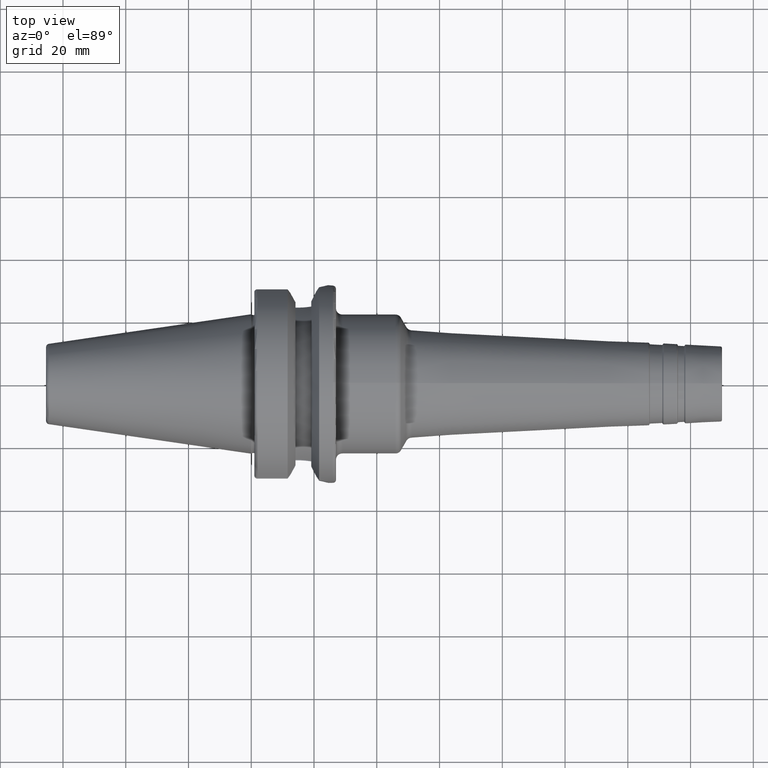
[diagram: clean part render]
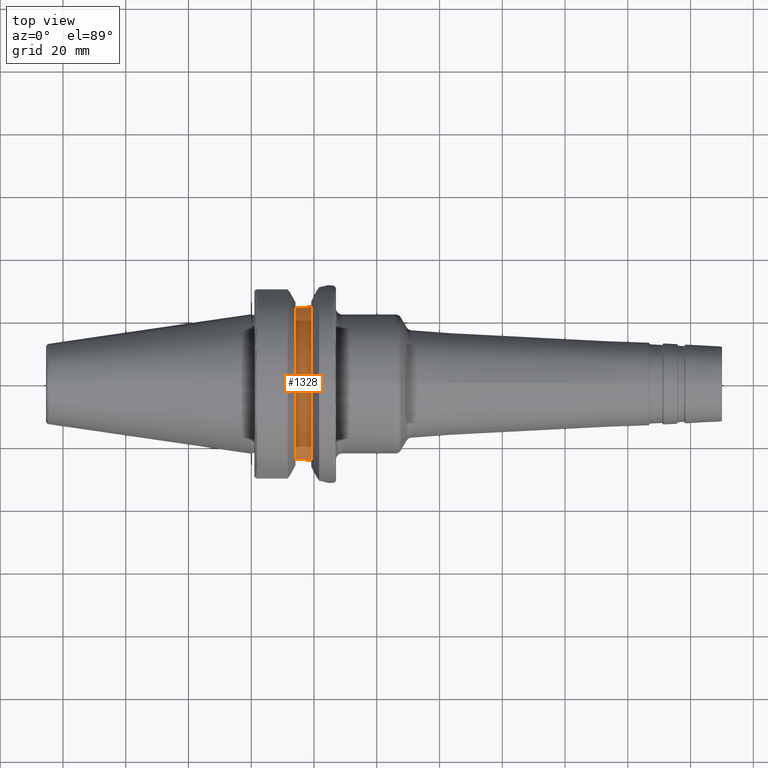
[diagram: same view with one face highlighted and labeled with its STEP entity id]
A machine part, top view. The second image highlights one B-rep face of the part: STEP entity #1328.
In plain terms, the highlighted cylindrical surface (partial cylindrical patch) has radius 25.5 mm, axis along (1, 0, 0).
Its self-contained STEP definition (entity closure, byte-faithful):
#43=B_SPLINE_CURVE_WITH_KNOTS('',3,(#2486,#2487,#2488,#2489,#2490,#2491),
 .UNSPECIFIED.,.F.,.F.,(4,2,4),(0.,0.305559393991992,0.418764848000603),
 .UNSPECIFIED.);
#46=B_SPLINE_CURVE_WITH_KNOTS('',3,(#2552,#2553,#2554,#2555,#2556,#2557),
 .UNSPECIFIED.,.F.,.F.,(4,2,4),(-0.418764848000603,-0.305559393991992,0.),
 .UNSPECIFIED.);
#62=CYLINDRICAL_SURFACE('',#1506,25.5);
#142=LINE('',#2462,#213);
#156=LINE('',#2558,#227);
#213=VECTOR('',#1826,10.);
#227=VECTOR('',#1882,10.);
#324=FACE_OUTER_BOUND('',#411,.T.);
#411=EDGE_LOOP('',(#1144,#1145,#1146,#1147,#1148,#1149));
#505=CIRCLE('',#1503,25.5);
#507=CIRCLE('',#1507,25.5);
#614=VERTEX_POINT('',#2459);
#615=VERTEX_POINT('',#2461);
#621=VERTEX_POINT('',#2484);
#631=VERTEX_POINT('',#2536);
#633=VERTEX_POINT('',#2549);
#634=VERTEX_POINT('',#2551);
#783=EDGE_CURVE('',#615,#614,#142,.T.);
#792=EDGE_CURVE('',#614,#621,#43,.T.);
#810=EDGE_CURVE('',#631,#615,#505,.T.);
#814=EDGE_CURVE('',#633,#621,#507,.T.);
#815=EDGE_CURVE('',#633,#634,#46,.T.);
#816=EDGE_CURVE('',#634,#631,#156,.T.);
#1144=ORIENTED_EDGE('',*,*,#783,.T.);
#1145=ORIENTED_EDGE('',*,*,#792,.T.);
#1146=ORIENTED_EDGE('',*,*,#814,.F.);
#1147=ORIENTED_EDGE('',*,*,#815,.T.);
#1148=ORIENTED_EDGE('',*,*,#816,.T.);
#1149=ORIENTED_EDGE('',*,*,#810,.T.);
#1328=ADVANCED_FACE('',(#324),#62,.T.);
#1503=AXIS2_PLACEMENT_3D('',#2537,#1871,#1872);
#1506=AXIS2_PLACEMENT_3D('',#2548,#1878,#1879);
#1507=AXIS2_PLACEMENT_3D('',#2550,#1880,#1881);
#1826=DIRECTION('',(1.,0.,0.));
#1871=DIRECTION('center_axis',(1.,0.,0.));
#1872=DIRECTION('ref_axis',(0.,0.,-1.));
#1878=DIRECTION('center_axis',(1.,0.,0.));
#1879=DIRECTION('ref_axis',(0.,1.,0.));
#1880=DIRECTION('center_axis',(1.,0.,0.));
#1881=DIRECTION('ref_axis',(0.,0.,-1.));
#1882=DIRECTION('',(-1.,0.,0.));
#2459=CARTESIAN_POINT('',(14.95,-24.1960224003864,8.05));
#2461=CARTESIAN_POINT('',(14.1,-24.1960224003864,8.05));
#2462=CARTESIAN_POINT('',(16.6,-24.1960224003864,8.05));
#2484=CARTESIAN_POINT('',(19.1,-24.5493380766162,6.89782574439221));
#2486=CARTESIAN_POINT('Ctrl Pts',(14.95,-24.1960224003864,8.05));
#2487=CARTESIAN_POINT('Ctrl Pts',(15.9685313133066,-24.1960224003864,8.05));
#2488=CARTESIAN_POINT('Ctrl Pts',(17.0497516664971,-24.2670783971366,7.84501312719341));
#2489=CARTESIAN_POINT('Ctrl Pts',(18.4072379028184,-24.4390565244262,7.28065599998141));
#2490=CARTESIAN_POINT('Ctrl Pts',(18.7625417379862,-24.492291659194,7.10085374759973));
#2491=CARTESIAN_POINT('Ctrl Pts',(19.1,-24.5493380766162,6.89782574439221));
#2536=CARTESIAN_POINT('',(14.1,24.1960224003864,8.05));
#2537=CARTESIAN_POINT('Origin',(14.1,0.,0.));
#2548=CARTESIAN_POINT('Origin',(16.6,0.,0.));
#2549=CARTESIAN_POINT('',(19.1,24.5493380766162,6.89782574439221));
#2550=CARTESIAN_POINT('Origin',(19.1,0.,0.));
#2551=CARTESIAN_POINT('',(14.95,24.1960224003864,8.05));
#2552=CARTESIAN_POINT('Ctrl Pts',(19.1,24.5493380766162,6.89782574439221));
#2553=CARTESIAN_POINT('Ctrl Pts',(18.7625417379862,24.492291659194,7.10085374759973));
#2554=CARTESIAN_POINT('Ctrl Pts',(18.4072379028184,24.4390565244262,7.28065599998141));
#2555=CARTESIAN_POINT('Ctrl Pts',(17.0497516664971,24.2670783971366,7.84501312719341));
#2556=CARTESIAN_POINT('Ctrl Pts',(15.9685313133066,24.1960224003864,8.05));
#2557=CARTESIAN_POINT('Ctrl Pts',(14.95,24.1960224003864,8.05));
#2558=CARTESIAN_POINT('',(16.6,24.1960224003864,8.05));